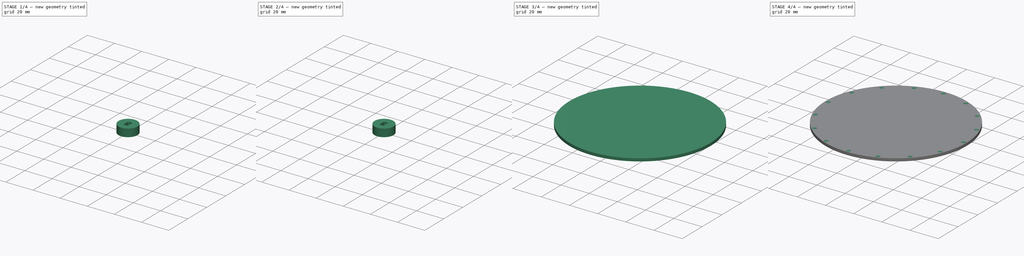
[diagram: build sequence overview — one tinted view per stage of 4, left to right]
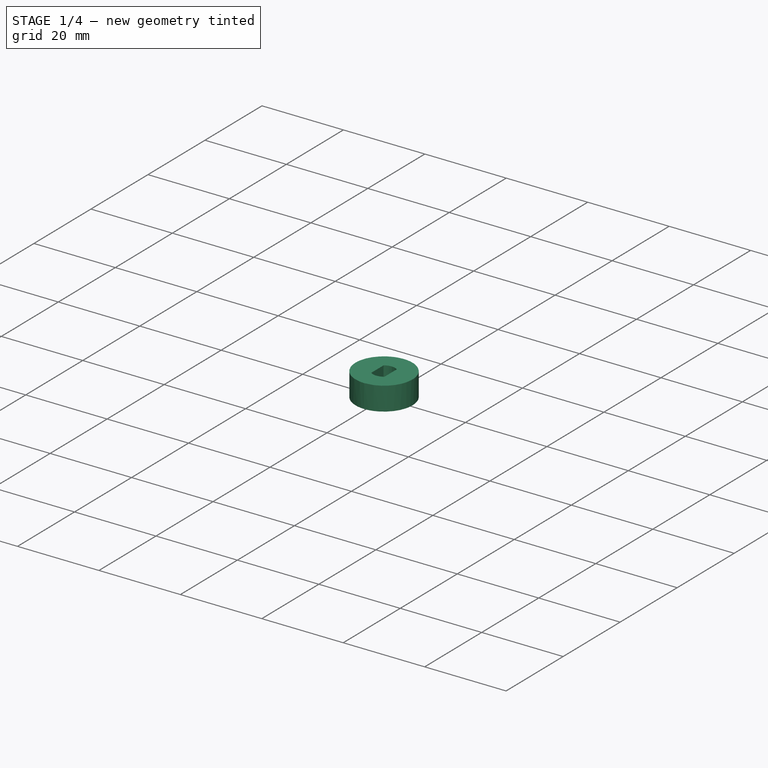
[diagram: stage 1 of 4 — iso view after this stage's code; geometry added in this stage tinted green]
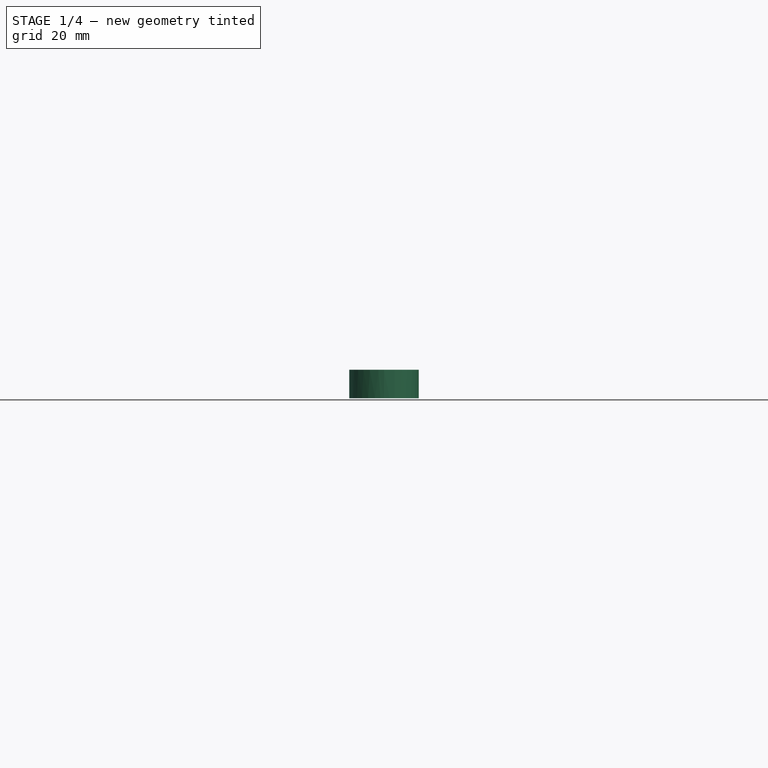
[diagram: stage 1 of 4 — front view after this stage's code; geometry added in this stage tinted green]
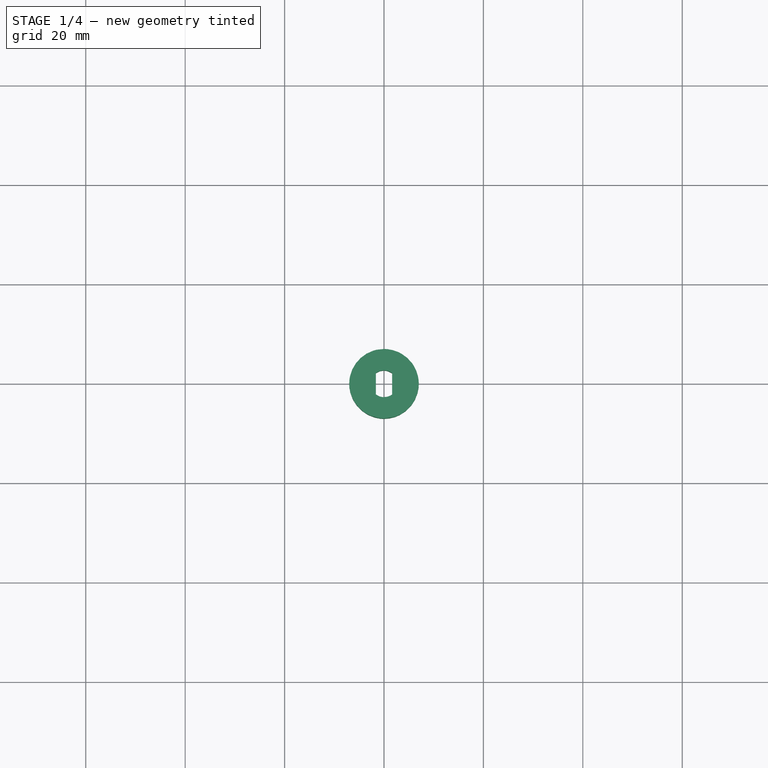
[diagram: stage 1 of 4 — top view after this stage's code; geometry added in this stage tinted green]
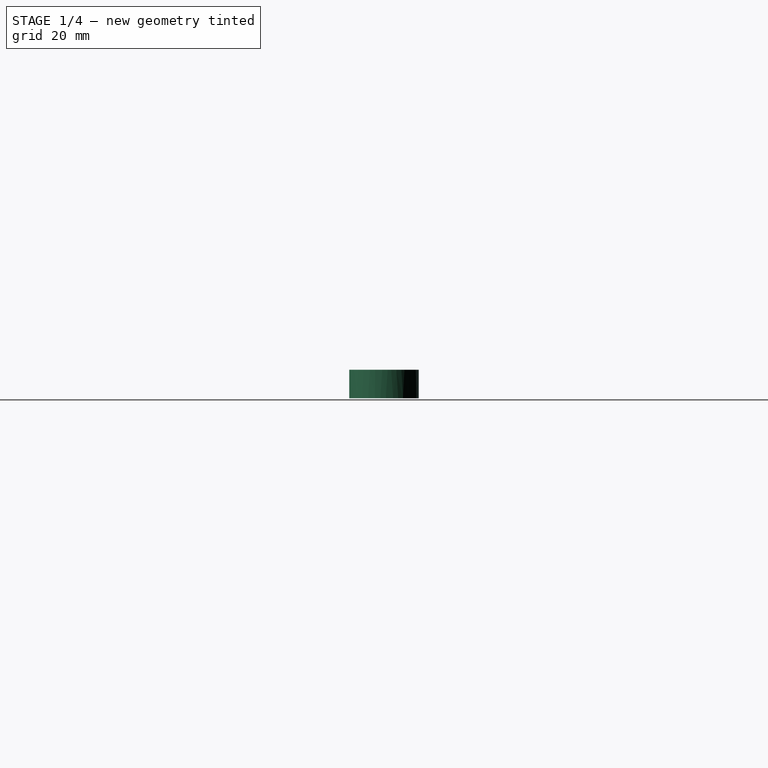
[diagram: stage 1 of 4 — right view after this stage's code; geometry added in this stage tinted green]
FCSTD DOCUMENT  (FreeCAD 0.19R24267 +148 (Git))
Label: Disc feeder
License: All rights reserved
LicenseURL: http://en.wikipedia.org/wiki/All_rights_reserved
objects: PartDesign::Pad×4, PartDesign::FeatureBase×3, PartDesign::Plane×3, Sketcher::SketchObject×3, PartDesign::Body×3, Part::Face×2, Part::FeaturePython×2, App::MeasureDistance×2, Part::Feature×1, App::DocumentObjectGroup×1, Part::Extrusion×1, PartDesign::Hole×1, PartDesign::PolarPattern×1, Part::Compound×1
note: 30 computed .brp shape members not serialized (recipe doc carries the construction recipe); baked Part::Feature solids carry a one-line shape summary decoded from their .brp

FEATURE [Part::Feature] FED_20mg_pellet_disk001_solid  label="FED_20mg_pellet_disk001 (Solid)"
  shape: bbox 43.53 x 43.54 x 8.001 mm, 3062 faces (baked)
FEATURE [PartDesign::FeatureBase] BaseFeature
  BaseFeature = -> FED_20mg_pellet_disk001_solid
FEATURE [PartDesign::Plane] DatumPlane
  Length = 119.876
  MapMode = 5
  Placement = pos=(0,0,2.25) rot=(0,0,1;0rad)
  ResizeMode = 0
  Support = -> [BaseFeature]
  Width = 119.909
FEATURE [Sketcher::SketchObject] Sketch
  FullyConstrained = false
  MapMode = 5
  Placement = pos=(0,0,2.25) rot=(0,0,1;0rad)
  Support = -> [DatumPlane]
  sketch-geometry (1):
    g0: Circle CenterX=0 CenterY=0 CenterZ=0 NormalX=0 NormalY=0 NormalZ=1 AngleXU=0 Radius=49.98
  constraints (1):
    c: Coincident(g0,g-1)
FEATURE [PartDesign::Body] Body
  BaseFeature = -> FED_20mg_pellet_disk001_solid
  Group = -> [BaseFeature,DatumPlane,Sketch]
  Origin = -> Origin
  Tip = -> BaseFeature
FEATURE [Part::Face] Face
  FaceMakerClass = Part::FaceMakerBullseye
  Sources = -> [Sketch]
FEATURE [Part::FeaturePython] Slice  # WARN: FeaturePython — macro-defined, semantics opaque (R4)
  Base = -> Body
  Mode = 1
  Tolerance = 0
  Tools = -> [Face]
FEATURE [Part::FeaturePython] Slice_child2  label="Slice.2"  # WARN: FeaturePython — macro-defined, semantics opaque (R4)
  Base = -> Slice
  FilterType = 1
  Invert = false
  OverrideMaxVal = 0
  WindowFrom = 80
  WindowTo = 100
  items = 2
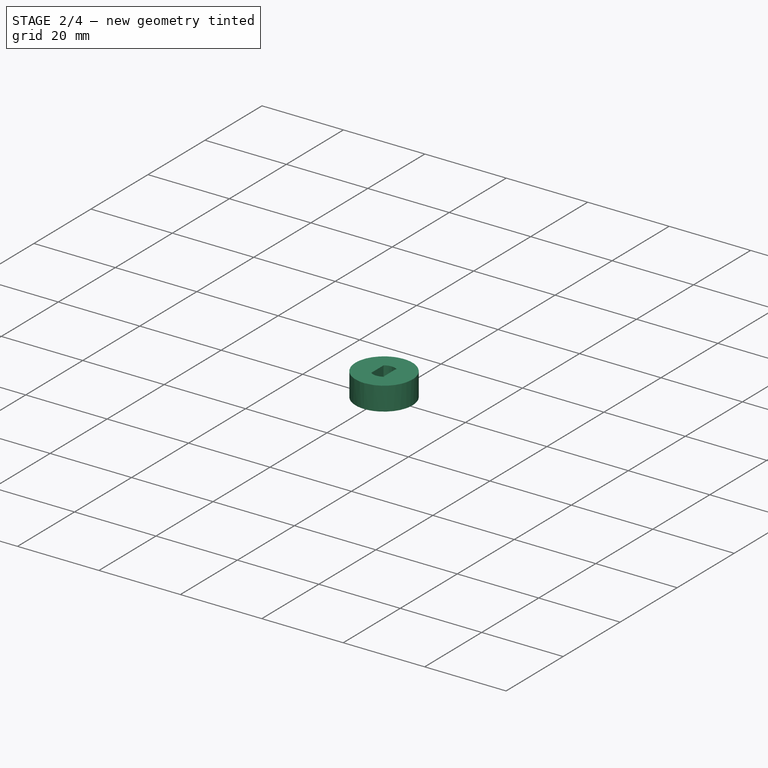
[diagram: stage 2 of 4 — iso view after this stage's code; geometry added in this stage tinted green]
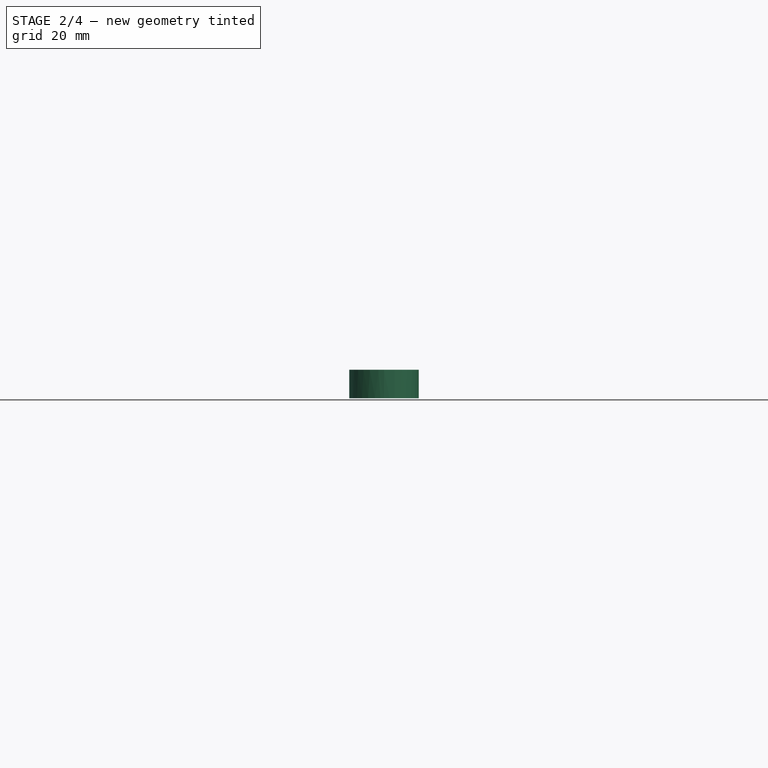
[diagram: stage 2 of 4 — front view after this stage's code; geometry added in this stage tinted green]
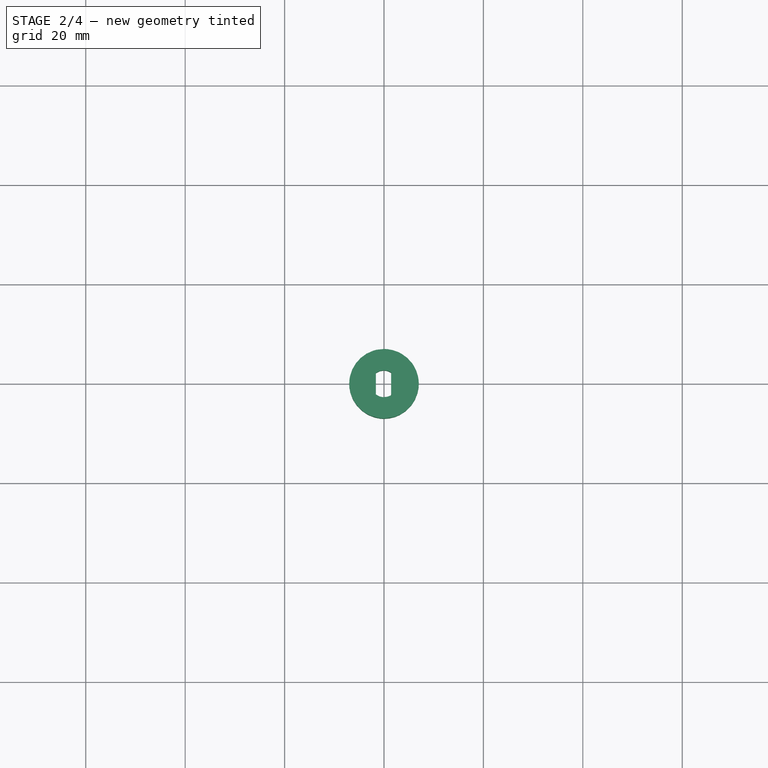
[diagram: stage 2 of 4 — top view after this stage's code; geometry added in this stage tinted green]
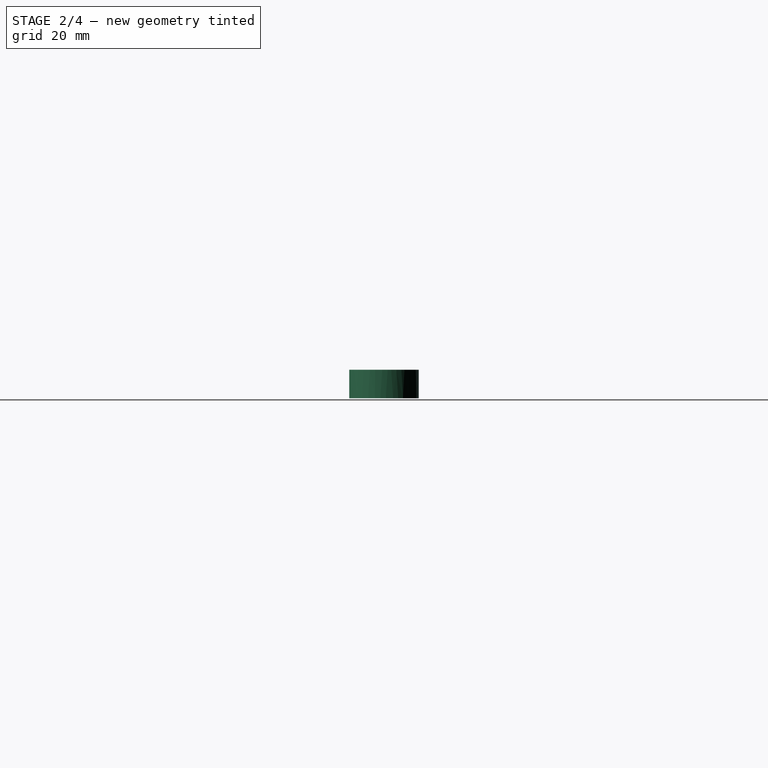
[diagram: stage 2 of 4 — right view after this stage's code; geometry added in this stage tinted green]
FEATURE [App::DocumentObjectGroup] GrExplode_Slice  label="Exploded Slice"
  Group = -> [Slice_child2]
FEATURE [PartDesign::FeatureBase] BaseFeature001
  BaseFeature = -> Slice_child2
FEATURE [PartDesign::Body] Body002
  BaseFeature = -> Extrude
  Group = -> [BaseFeature002,DatumPlane002,Sketch002,Hole,PolarPattern]
  Origin = -> Origin002
  Tip = -> PolarPattern
FEATURE [PartDesign::Pad] Pad
  BaseFeature = -> BaseFeature001
  Direction = (1,1,1)
  Length = 0.2
  Length2 = 100
  Profile = -> BaseFeature001 [Face92]
  Type = 0
FEATURE [App::MeasureDistance] Distance  label="Distance: 3.25 mm"
  Distance = 3.25
  P1 = (-1.625,0.179833,2.25)
  P2 = (1.625,0.179833,2.25)
FEATURE [PartDesign::Pad] Pad001
  BaseFeature = -> Pad
  Direction = (1,1,1)
  Length = 0.2
  Length2 = 100
  Profile = -> Pad [Face46]
  Type = 0
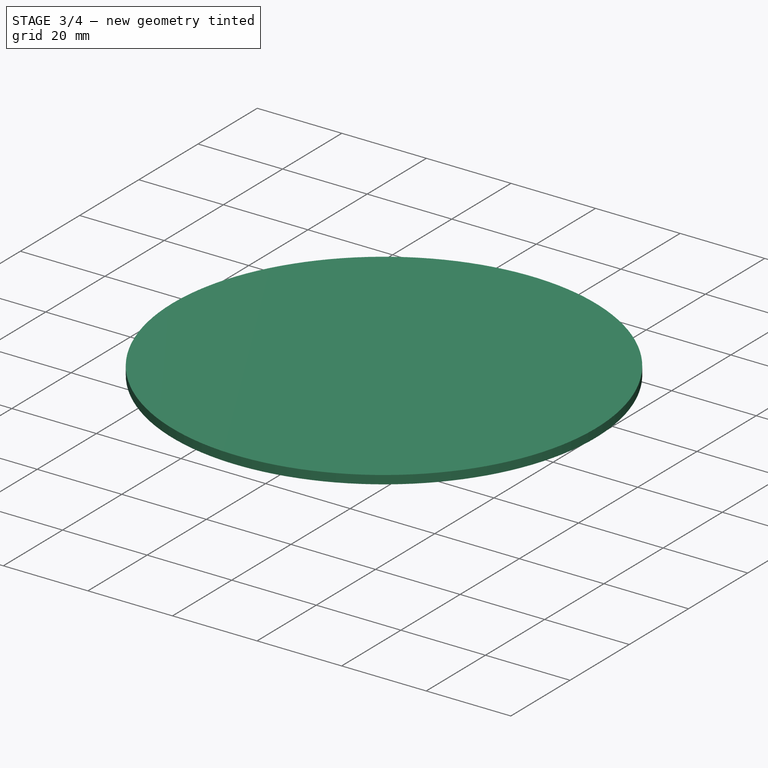
[diagram: stage 3 of 4 — iso view after this stage's code; geometry added in this stage tinted green]
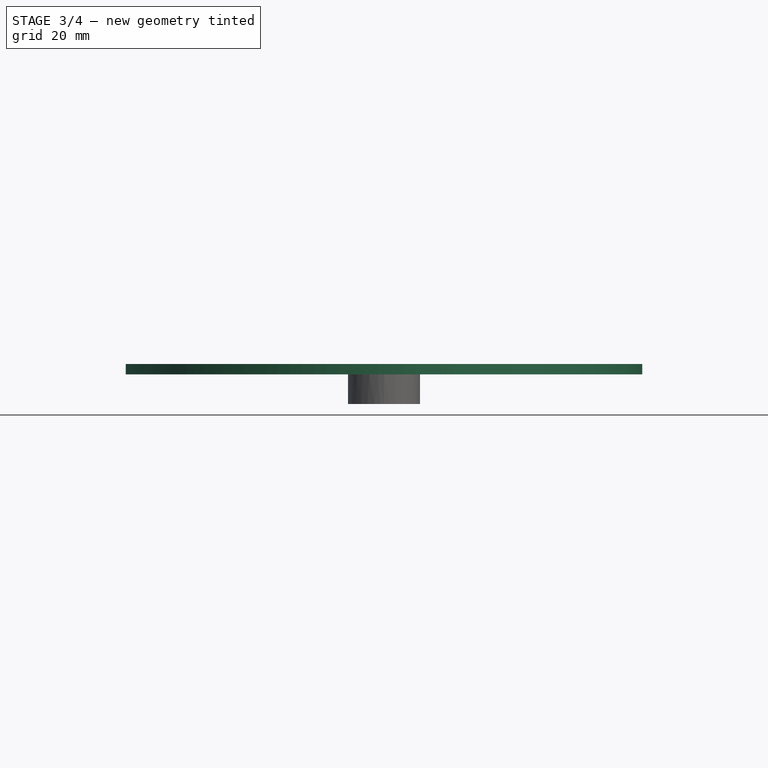
[diagram: stage 3 of 4 — front view after this stage's code; geometry added in this stage tinted green]
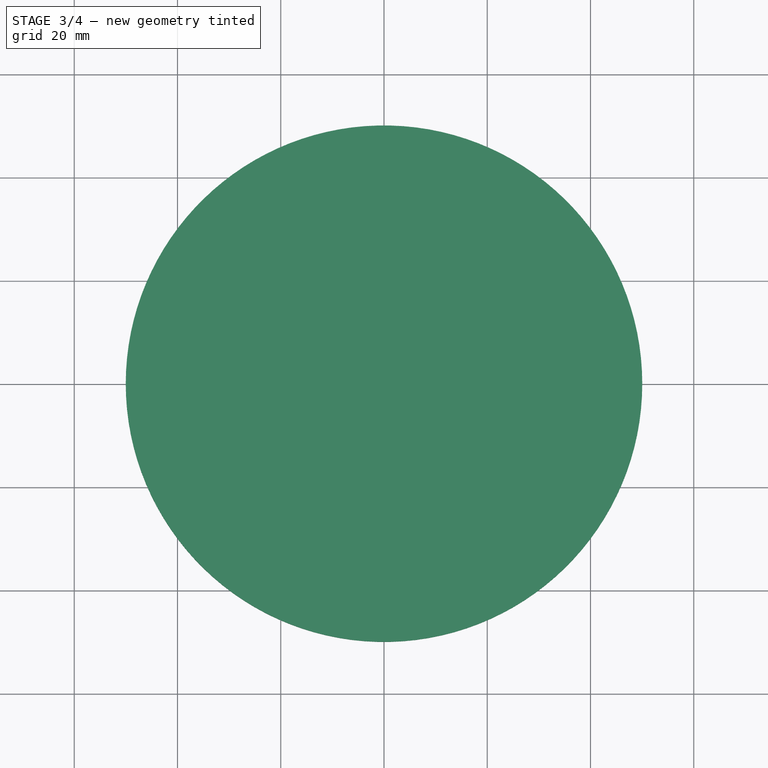
[diagram: stage 3 of 4 — top view after this stage's code; geometry added in this stage tinted green]
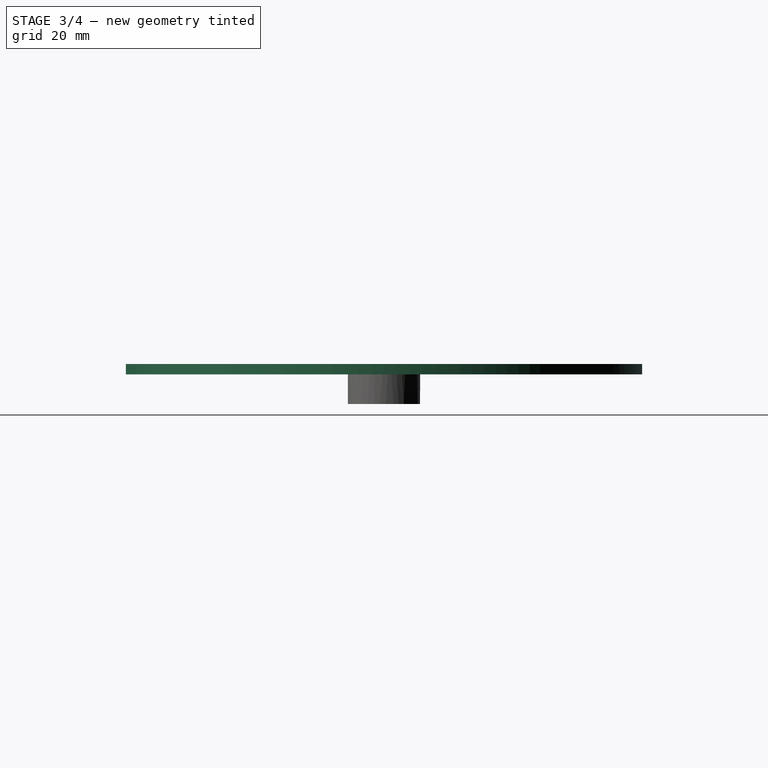
[diagram: stage 3 of 4 — right view after this stage's code; geometry added in this stage tinted green]
FEATURE [PartDesign::Plane] DatumPlane001
  Length = 60
  MapMode = 5
  Placement = pos=(0,0,8.001) rot=(0,0,1;0rad)
  ResizeMode = 0
  Support = -> [BaseFeature001]
  Width = 60
FEATURE [Sketcher::SketchObject] Sketch001
  FullyConstrained = false
  MapMode = 5
  Placement = pos=(0,0,8.001) rot=(0,0,1;0rad)
  Support = -> [DatumPlane001]
  sketch-geometry (1):
    g0: Circle CenterX=0 CenterY=0 CenterZ=0 NormalX=0 NormalY=0 NormalZ=1 AngleXU=0 Radius=50.0245
  constraints (1):
    c: Coincident(g0,g-1)
FEATURE [Part::Face] Face001
  FaceMakerClass = Part::FaceMakerBullseye
  Sources = -> [Sketch001]
FEATURE [Part::Extrusion] Extrude
  Base = -> Sketch001
  Dir = (0,0,1)
  DirMode = 2
  FaceMakerClass = Part::FaceMakerBullseye
  LengthFwd = 2
  LengthRev = 0
  Solid = true
  Symmetric = false
FEATURE [PartDesign::FeatureBase] BaseFeature002
  BaseFeature = -> Extrude
FEATURE [PartDesign::Pad] Pad002
  BaseFeature = -> Pad001
  Direction = (1,1,1)
  Length = 0.2
  Length2 = 100
  Profile = -> Pad001 [Face40]
  Type = 0
FEATURE [PartDesign::Pad] Pad003
  BaseFeature = -> Pad002
  Direction = (1,1,1)
  Length = 0.2
  Length2 = 100
  Profile = -> Pad002 [Face133]
  Type = 0
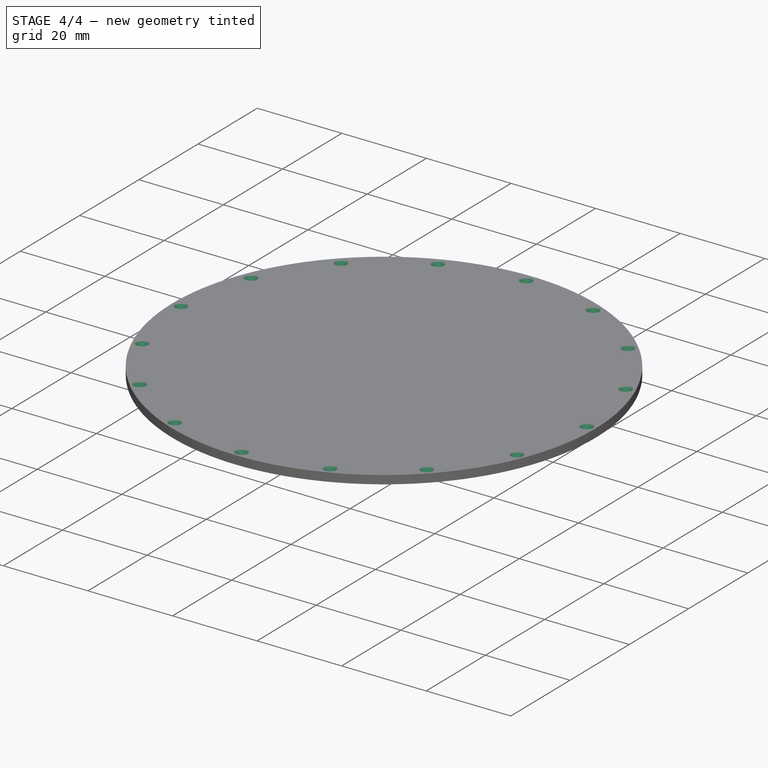
[diagram: stage 4 of 4 — iso view after this stage's code; geometry added in this stage tinted green]
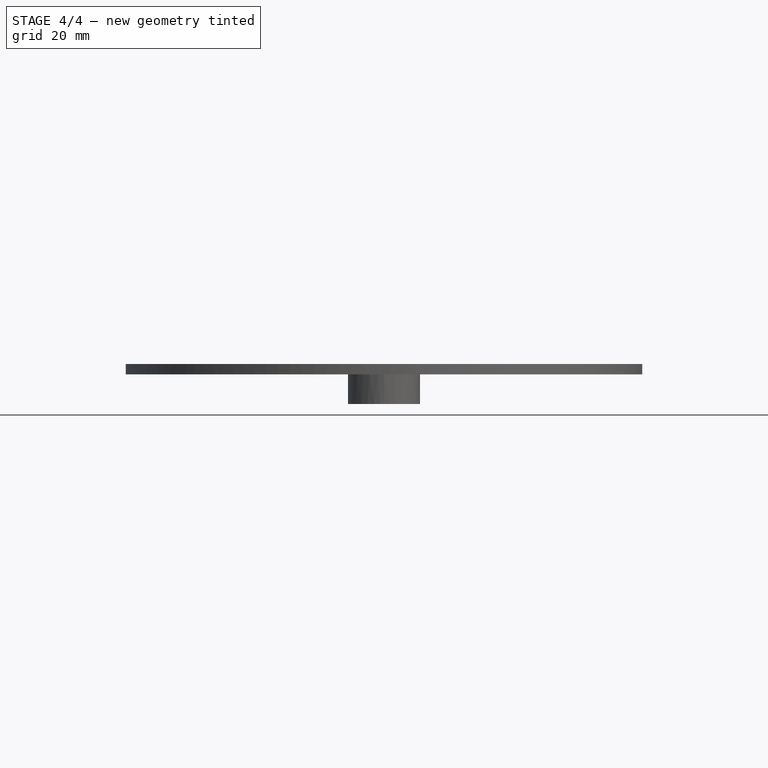
[diagram: stage 4 of 4 — front view after this stage's code; geometry added in this stage tinted green]
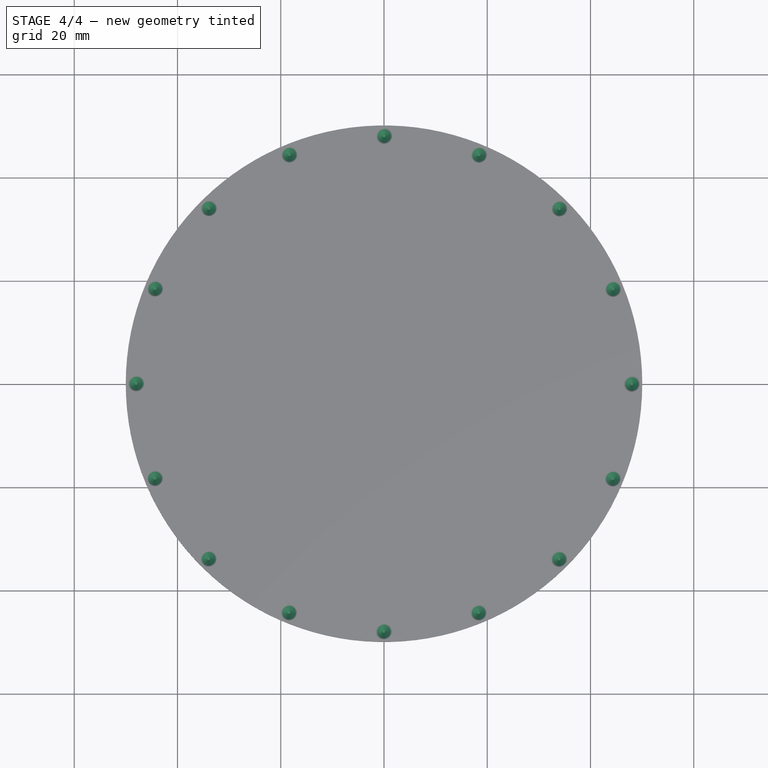
[diagram: stage 4 of 4 — top view after this stage's code; geometry added in this stage tinted green]
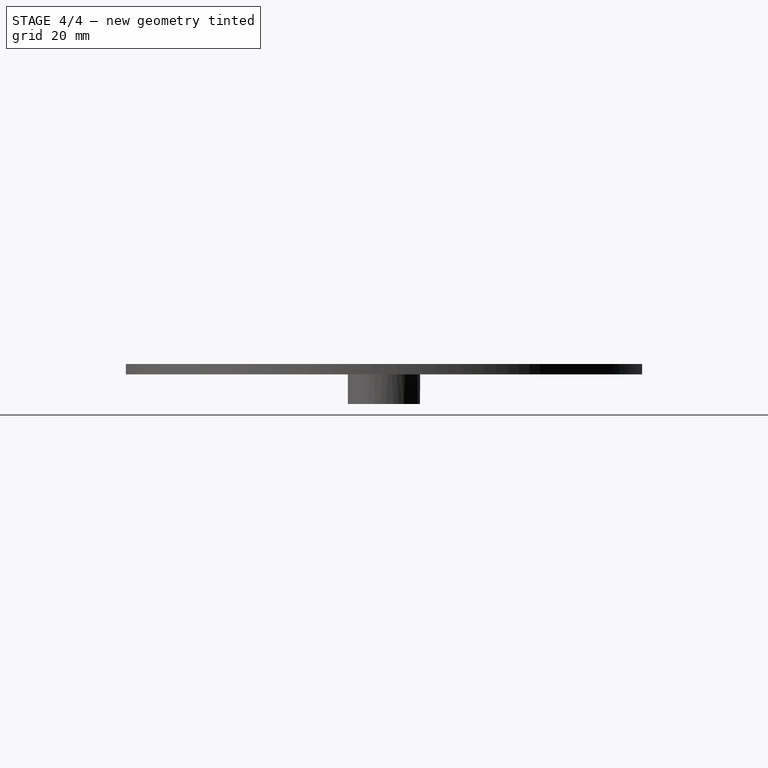
[diagram: stage 4 of 4 — right view after this stage's code; geometry added in this stage tinted green]
FEATURE [PartDesign::Plane] DatumPlane002
  Length = 119.983
  MapMode = 5
  Placement = pos=(0,0,10.001) rot=(0,0,1;0rad)
  ResizeMode = 0
  Support = -> [BaseFeature002]
  Width = 120.016
FEATURE [Sketcher::SketchObject] Sketch002
  FullyConstrained = false
  MapMode = 5
  Placement = pos=(0,0,10.001) rot=(0,0,1;0rad)
  Support = -> [DatumPlane002]
  sketch-geometry (1):
    g0: Circle CenterX=0.04156 CenterY=48.0003 CenterZ=0 NormalX=0 NormalY=0 NormalZ=1 AngleXU=0 Radius=1.19738
FEATURE [PartDesign::Hole] Hole
  BaseFeature = -> BaseFeature002
  Depth = 1.5
  DepthType = 0
  Diameter = 3
  DrillForDepth = false
  DrillPoint = 0
  DrillPointAngle = 450
  HoleCutCountersinkAngle = 45
  HoleCutCustomValues = false
  HoleCutDepth = 2.7
  HoleCutDiameter = 6.1
  HoleCutType = 0
  ModelActualThread = false
  Profile = -> Sketch002
  Tapered = true
  TaperedAngle = 50
  ThreadAngle = 0
  ThreadClass = 0
  ThreadCutOffInner = 0
  ThreadCutOffOuter = 0
  ThreadDirection = 0
  ThreadFit = 0
  ThreadPitch = 0
  ThreadSize = 0
  ThreadType = 0
  Threaded = false
FEATURE [PartDesign::PolarPattern] PolarPattern
  Angle = 360
  Axis = -> Sketch002 [N_Axis]
  BaseFeature = -> Hole
  Occurrences = 16
  Originals = -> [Hole]
FEATURE [PartDesign::Body] Body001
  BaseFeature = -> Slice_child2
  Group = -> [BaseFeature001,DatumPlane001,Sketch001,Pad,Pad001,Pad002,Pad003]
  Origin = -> Origin001
  Tip = -> Pad003
FEATURE [Part::Compound] Compound
  Links = -> [Body001,Body002]
FEATURE [App::MeasureDistance] Distance001  label="Distance: 2.86 mm"
  Distance = 2.85536
  P1 = (-1.425,-0.539643,2.25)
  P2 = (1.425,-0.714487,2.25)
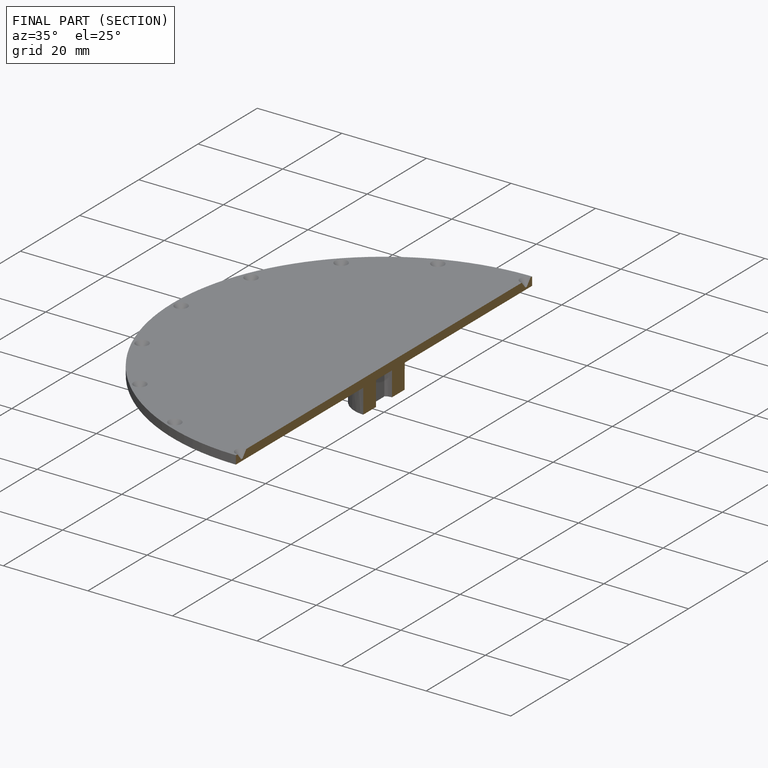
[diagram: finished part — half-section view (interior)]
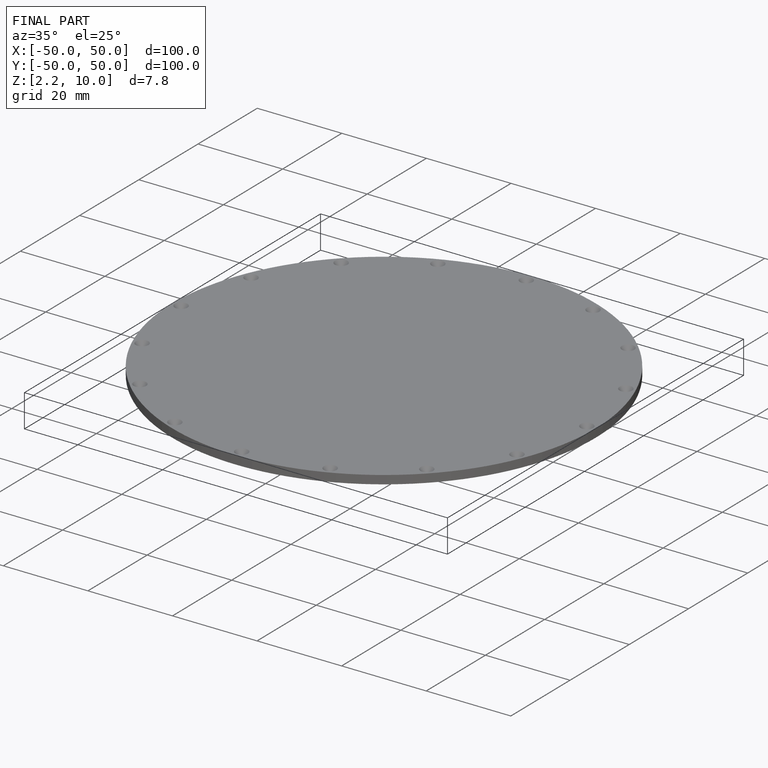
[diagram: finished part — iso view with bounding-box wireframe]
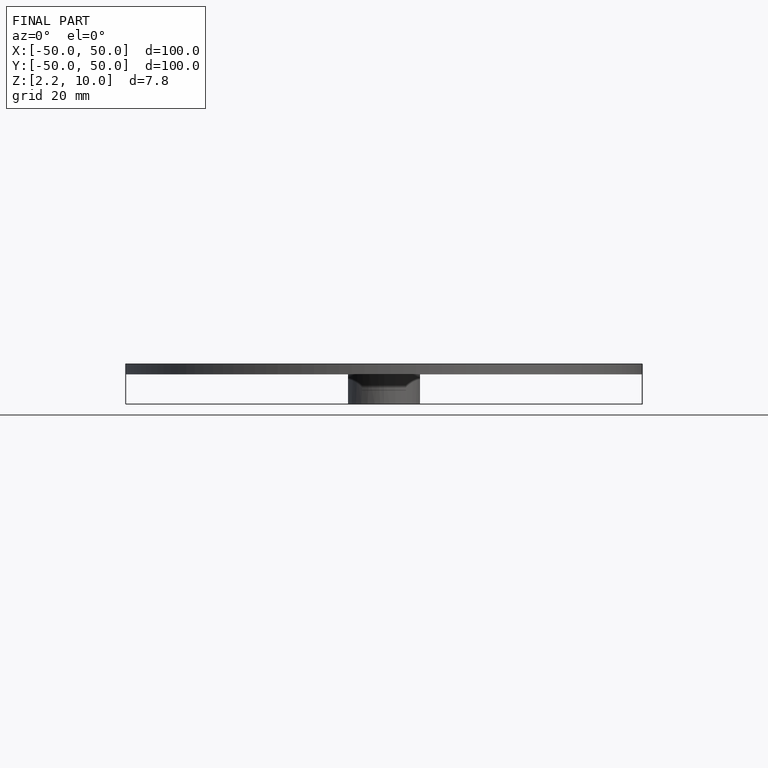
[diagram: finished part — front view with bounding-box wireframe]
